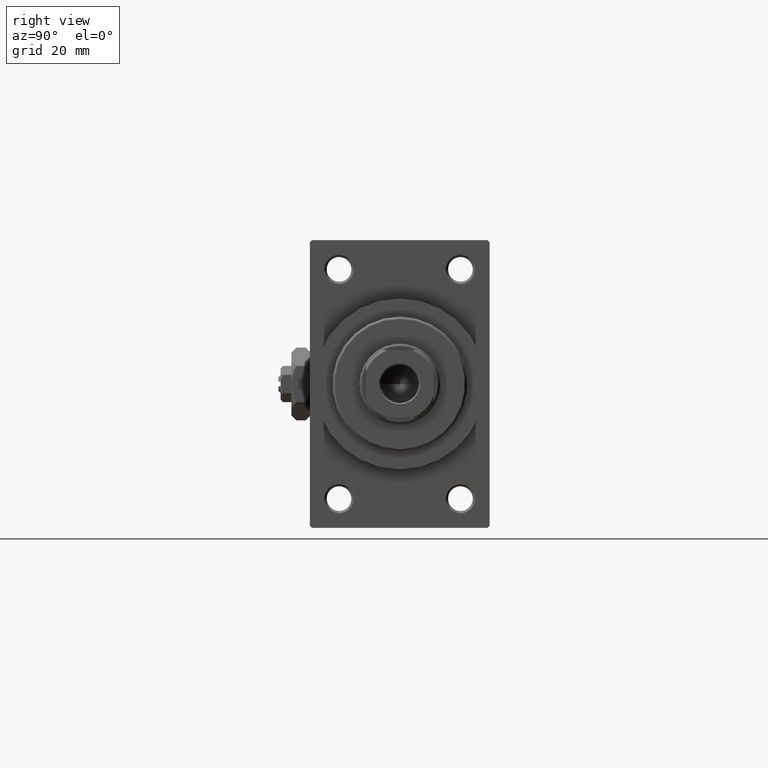
[diagram: clean part render]
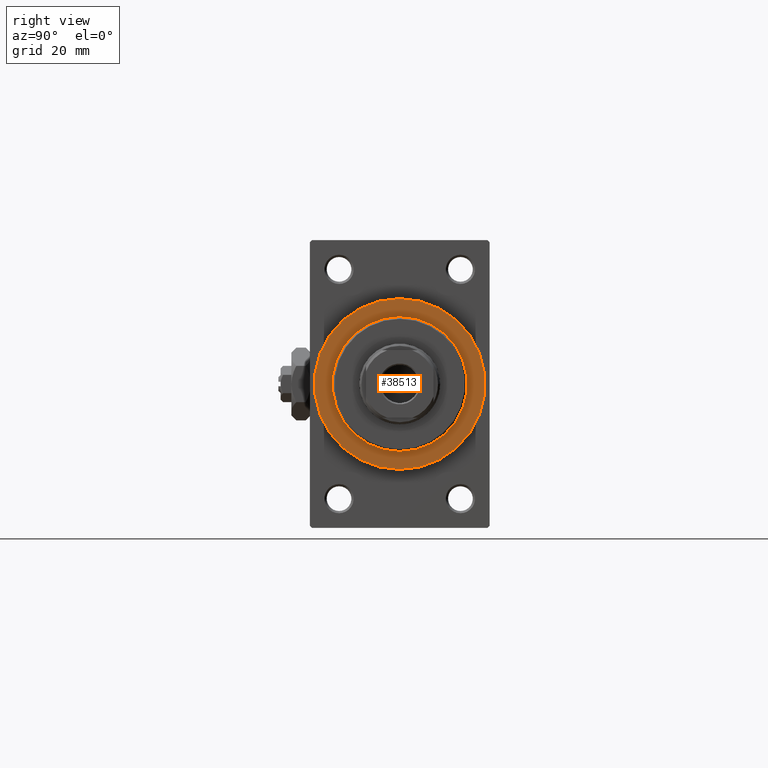
[diagram: same view with one face highlighted and labeled with its STEP entity id]
A machine part, right view. The second image highlights one B-rep face of the part: STEP entity #38513.
In plain terms, the highlighted planar face has unit normal (1, 0, 0).
Its self-contained STEP definition (entity closure, byte-faithful):
#1515 = DIRECTION ( 'NONE',  ( 1.000000000000000000, 0.000000000000000000, 0.000000000000000000 ) ) ;
#3836 = CARTESIAN_POINT ( 'NONE',  ( 119.0000000000000142, 1.836970198721029589E-15, 15.00000000000000000 ) ) ;
#5412 = VERTEX_POINT ( 'NONE', #19363 ) ;
#5703 = DIRECTION ( 'NONE',  ( 0.000000000000000000, 0.000000000000000000, -1.000000000000000000 ) ) ;
#6273 = DIRECTION ( 'NONE',  ( 1.000000000000000000, 0.000000000000000000, 0.000000000000000000 ) ) ;
#6707 = ORIENTED_EDGE ( 'NONE', *, *, #35680, .F. ) ;
#9546 = EDGE_CURVE ( 'NONE', #40926, #33516, #41256, .T. ) ;
#9975 = AXIS2_PLACEMENT_3D ( 'NONE', #30883, #42448, #45654 ) ;
#10919 = CIRCLE ( 'NONE', #29752, 19.00000000000000000 ) ;
#10962 = FACE_BOUND ( 'NONE', #16368, .T. ) ;
#12807 = CARTESIAN_POINT ( 'NONE',  ( 119.0000000000000142, 0.000000000000000000, -15.00000000000000000 ) ) ;
#15814 = CARTESIAN_POINT ( 'NONE',  ( 119.0000000000000142, 0.000000000000000000, 0.000000000000000000 ) ) ;
#16368 = EDGE_LOOP ( 'NONE', ( #21189, #6707 ) ) ;
#19076 = EDGE_CURVE ( 'NONE', #26065, #5412, #38305, .T. ) ;
#19363 = CARTESIAN_POINT ( 'NONE',  ( 119.0000000000000142, 0.000000000000000000, 19.00000000000000000 ) ) ;
#19680 = DIRECTION ( 'NONE',  ( 0.000000000000000000, 0.000000000000000000, -1.000000000000000000 ) ) ;
#21189 = ORIENTED_EDGE ( 'NONE', *, *, #9546, .F. ) ;
#23862 = ORIENTED_EDGE ( 'NONE', *, *, #42682, .T. ) ;
#24053 = DIRECTION ( 'NONE',  ( 1.000000000000000000, 0.000000000000000000, 0.000000000000000000 ) ) ;
#26065 = VERTEX_POINT ( 'NONE', #28836 ) ;
#27505 = CARTESIAN_POINT ( 'NONE',  ( 119.0000000000000142, 0.000000000000000000, 0.000000000000000000 ) ) ;
#28836 = CARTESIAN_POINT ( 'NONE',  ( 119.0000000000000142, 2.326828918379970970E-15, -19.00000000000000000 ) ) ;
#29752 = AXIS2_PLACEMENT_3D ( 'NONE', #38867, #41834, #19680 ) ;
#30267 = AXIS2_PLACEMENT_3D ( 'NONE', #44170, #6273, #47152 ) ;
#30883 = CARTESIAN_POINT ( 'NONE',  ( 119.0000000000000142, 0.000000000000000000, 0.000000000000000000 ) ) ;
#33516 = VERTEX_POINT ( 'NONE', #3836 ) ;
#34755 = PLANE ( 'NONE',  #46130 ) ;
#35138 = CIRCLE ( 'NONE', #9975, 15.00000000000000000 ) ;
#35680 = EDGE_CURVE ( 'NONE', #33516, #40926, #35138, .T. ) ;
#35957 = AXIS2_PLACEMENT_3D ( 'NONE', #27505, #24053, #42258 ) ;
#37260 = EDGE_LOOP ( 'NONE', ( #23862, #43769 ) ) ;
#38305 = CIRCLE ( 'NONE', #35957, 19.00000000000000000 ) ;
#38513 = ADVANCED_FACE ( 'NONE', ( #10962, #45825 ), #34755, .T. ) ;
#38867 = CARTESIAN_POINT ( 'NONE',  ( 119.0000000000000142, 0.000000000000000000, 0.000000000000000000 ) ) ;
#40926 = VERTEX_POINT ( 'NONE', #12807 ) ;
#41256 = CIRCLE ( 'NONE', #30267, 15.00000000000000000 ) ;
#41834 = DIRECTION ( 'NONE',  ( 1.000000000000000000, 0.000000000000000000, 0.000000000000000000 ) ) ;
#42258 = DIRECTION ( 'NONE',  ( 0.000000000000000000, 0.000000000000000000, -1.000000000000000000 ) ) ;
#42448 = DIRECTION ( 'NONE',  ( 1.000000000000000000, 0.000000000000000000, 0.000000000000000000 ) ) ;
#42682 = EDGE_CURVE ( 'NONE', #5412, #26065, #10919, .T. ) ;
#43769 = ORIENTED_EDGE ( 'NONE', *, *, #19076, .T. ) ;
#44170 = CARTESIAN_POINT ( 'NONE',  ( 119.0000000000000142, 0.000000000000000000, 0.000000000000000000 ) ) ;
#45654 = DIRECTION ( 'NONE',  ( 0.000000000000000000, 0.000000000000000000, -1.000000000000000000 ) ) ;
#45825 = FACE_OUTER_BOUND ( 'NONE', #37260, .T. ) ;
#46130 = AXIS2_PLACEMENT_3D ( 'NONE', #15814, #1515, #5703 ) ;
#47152 = DIRECTION ( 'NONE',  ( 0.000000000000000000, 0.000000000000000000, -1.000000000000000000 ) ) ;